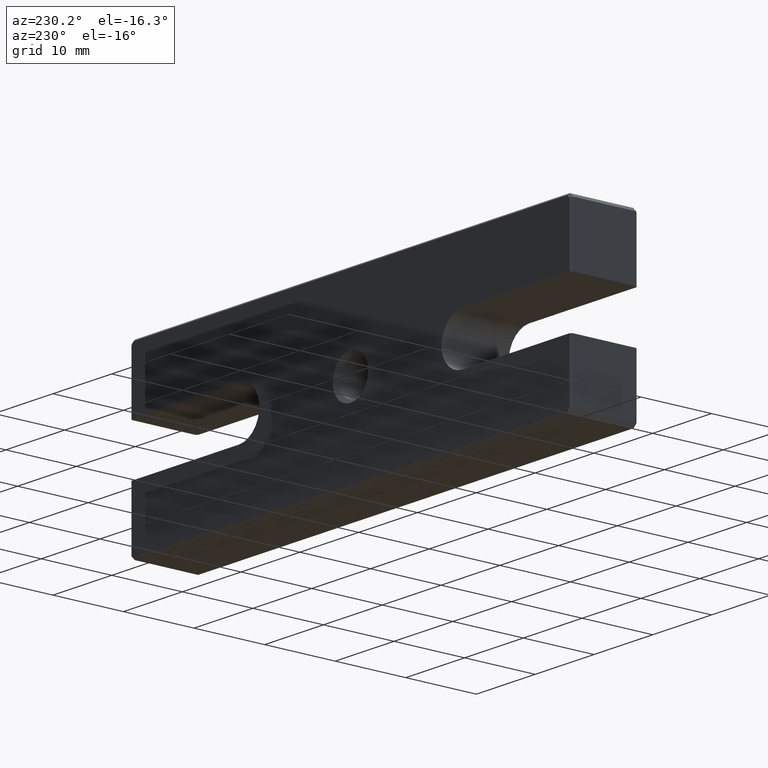
[diagram: clean part render]
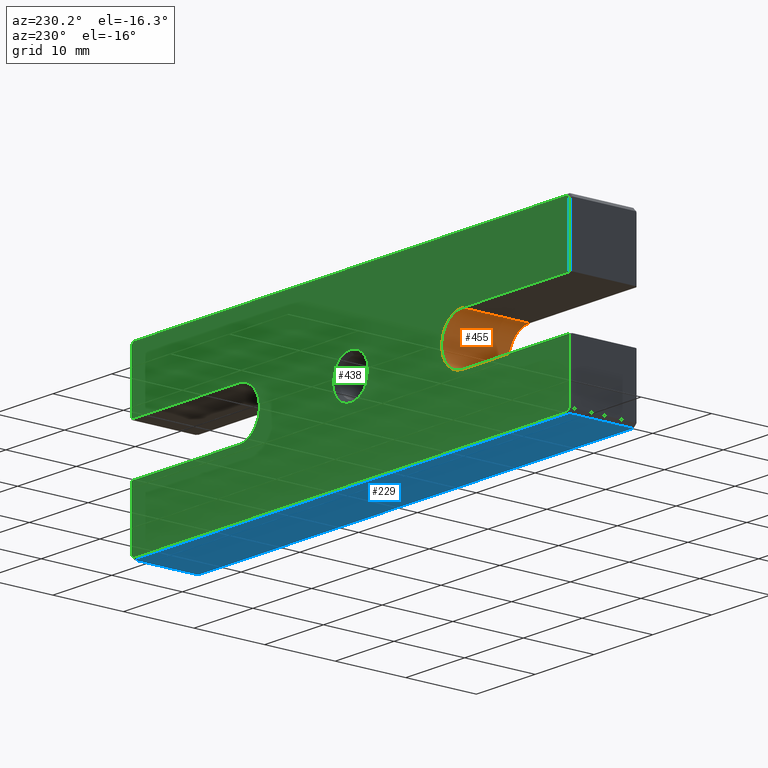
[diagram: same view with three faces highlighted in distinct colors, each labeled with its STEP entity id]
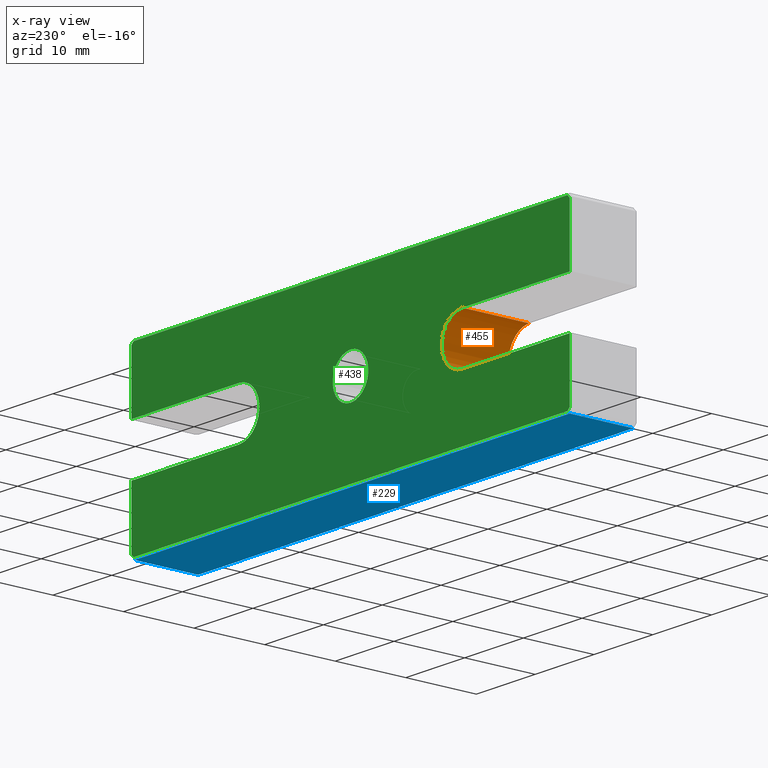
[diagram: x-ray of the same camera — body ghosted, the three highlighted faces saturated]
A machine part, auxiliary view with three faces highlighted in distinct colors.
The next image is the same camera in x-ray (body ghosted, the three faces saturated) — at least one of them is partly hidden behind the body in this view.
Their STEP definitions:

[orange] entity #455 — the highlighted cylindrical surface (edge-blend (fillet) strip) has radius 3.5 mm, axis along (-0, 1, -0).
#22 = VERTEX_POINT ( 'NONE', #220 ) ;
#39 = ORIENTED_EDGE ( 'NONE', *, *, #796, .F. ) ;
#86 = VECTOR ( 'NONE', #672, 1000.000000000000000 ) ;
#145 = CARTESIAN_POINT ( 'NONE',  ( -19.00000000000000355, 0.000000000000000000, -4.336808689942017736E-16 ) ) ;
#163 = CYLINDRICAL_SURFACE ( 'NONE', #1060, 3.499999999999999556 ) ;
#168 = EDGE_CURVE ( 'NONE', #456, #22, #536, .T. ) ;
#218 = CARTESIAN_POINT ( 'NONE',  ( -19.00000000000000355, 0.000000000000000000, -3.500000000000000000 ) ) ;
#220 = CARTESIAN_POINT ( 'NONE',  ( -19.00000000000000355, 9.500000000000000000, 3.499999999999999112 ) ) ;
#296 = LINE ( 'NONE', #218, #86 ) ;
#373 = CARTESIAN_POINT ( 'NONE',  ( -19.00000000000000355, 9.500000000000000000, -4.336808689942017736E-16 ) ) ;
#380 = DIRECTION ( 'NONE',  ( 0.000000000000000000, 1.000000000000000000, 0.000000000000000000 ) ) ;
#400 = VERTEX_POINT ( 'NONE', #740 ) ;
#417 = EDGE_LOOP ( 'NONE', ( #748, #39, #1159, #767 ) ) ;
#455 = ADVANCED_FACE ( 'NONE', ( #893 ), #163, .F. ) ;
#456 = VERTEX_POINT ( 'NONE', #1002 ) ;
#459 = CARTESIAN_POINT ( 'NONE',  ( -19.00000000000000355, 0.000000000000000000, 3.499999999999999112 ) ) ;
#503 = AXIS2_PLACEMENT_3D ( 'NONE', #373, #380, #961 ) ;
#536 = LINE ( 'NONE', #459, #792 ) ;
#577 = VERTEX_POINT ( 'NONE', #1096 ) ;
#602 = DIRECTION ( 'NONE',  ( -0.000000000000000000, 1.000000000000000000, -0.000000000000000000 ) ) ;
#618 = EDGE_CURVE ( 'NONE', #456, #577, #770, .T. ) ;
#672 = DIRECTION ( 'NONE',  ( -0.000000000000000000, 1.000000000000000000, -0.000000000000000000 ) ) ;
#740 = CARTESIAN_POINT ( 'NONE',  ( -19.00000000000000355, 9.500000000000000000, -3.500000000000000000 ) ) ;
#748 = ORIENTED_EDGE ( 'NONE', *, *, #1197, .T. ) ;
#757 = CIRCLE ( 'NONE', #503, 3.499999999999999556 ) ;
#767 = ORIENTED_EDGE ( 'NONE', *, *, #168, .T. ) ;
#770 = CIRCLE ( 'NONE', #1146, 3.499999999999999556 ) ;
#792 = VECTOR ( 'NONE', #827, 1000.000000000000000 ) ;
#796 = EDGE_CURVE ( 'NONE', #577, #400, #296, .T. ) ;
#827 = DIRECTION ( 'NONE',  ( -0.000000000000000000, 1.000000000000000000, -0.000000000000000000 ) ) ;
#893 = FACE_OUTER_BOUND ( 'NONE', #417, .T. ) ;
#929 = DIRECTION ( 'NONE',  ( 0.000000000000000000, 1.000000000000000000, 0.000000000000000000 ) ) ;
#961 = DIRECTION ( 'NONE',  ( 0.000000000000000000, 0.000000000000000000, 1.000000000000000000 ) ) ;
#984 = DIRECTION ( 'NONE',  ( 0.000000000000000000, 0.000000000000000000, 1.000000000000000000 ) ) ;
#1002 = CARTESIAN_POINT ( 'NONE',  ( -19.00000000000000355, 0.000000000000000000, 3.499999999999999112 ) ) ;
#1027 = DIRECTION ( 'NONE',  ( 0.000000000000000000, 0.000000000000000000, 1.000000000000000000 ) ) ;
#1060 = AXIS2_PLACEMENT_3D ( 'NONE', #145, #602, #984 ) ;
#1096 = CARTESIAN_POINT ( 'NONE',  ( -19.00000000000000355, 0.000000000000000000, -3.500000000000000000 ) ) ;
#1146 = AXIS2_PLACEMENT_3D ( 'NONE', #1195, #929, #1027 ) ;
#1159 = ORIENTED_EDGE ( 'NONE', *, *, #618, .F. ) ;
#1195 = CARTESIAN_POINT ( 'NONE',  ( -19.00000000000000355, 0.000000000000000000, -4.336808689942017736E-16 ) ) ;
#1197 = EDGE_CURVE ( 'NONE', #22, #400, #757, .T. ) ;

[blue] entity #229 — the highlighted planar face has unit normal (0, 0, 1).
#75 = PLANE ( 'NONE',  #324 ) ;
#164 = FACE_OUTER_BOUND ( 'NONE', #310, .T. ) ;
#193 = ORIENTED_EDGE ( 'NONE', *, *, #1032, .T. ) ;
#201 = ORIENTED_EDGE ( 'NONE', *, *, #601, .T. ) ;
#209 = EDGE_CURVE ( 'NONE', #816, #215, #807, .T. ) ;
#215 = VERTEX_POINT ( 'NONE', #344 ) ;
#229 = ADVANCED_FACE ( 'NONE', ( #164 ), #75, .F. ) ;
#305 = CARTESIAN_POINT ( 'NONE',  ( -37.50000000000000000, 0.2500000000000071609, -12.50000000000000178 ) ) ;
#310 = EDGE_LOOP ( 'NONE', ( #367, #1041, #201, #193 ) ) ;
#324 = AXIS2_PLACEMENT_3D ( 'NONE', #1202, #1190, #351 ) ;
#344 = CARTESIAN_POINT ( 'NONE',  ( 36.99999999999998579, 0.2500000000000071609, -12.50000000000000178 ) ) ;
#351 = DIRECTION ( 'NONE',  ( 1.000000000000000000, 0.000000000000000000, -0.000000000000000000 ) ) ;
#367 = ORIENTED_EDGE ( 'NONE', *, *, #209, .T. ) ;
#450 = LINE ( 'NONE', #639, #495 ) ;
#457 = CARTESIAN_POINT ( 'NONE',  ( -37.00000000000000000, 0.2500000000000071609, -12.50000000000000178 ) ) ;
#465 = LINE ( 'NONE', #624, #1177 ) ;
#488 = LINE ( 'NONE', #305, #1070 ) ;
#495 = VECTOR ( 'NONE', #633, 1000.000000000000000 ) ;
#497 = CARTESIAN_POINT ( 'NONE',  ( 36.99999999999998579, 9.250000000000000000, -12.50000000000000178 ) ) ;
#535 = VECTOR ( 'NONE', #541, 1000.000000000000000 ) ;
#541 = DIRECTION ( 'NONE',  ( 0.000000000000000000, -1.000000000000000000, 0.000000000000000000 ) ) ;
#574 = VERTEX_POINT ( 'NONE', #720 ) ;
#593 = VERTEX_POINT ( 'NONE', #457 ) ;
#601 = EDGE_CURVE ( 'NONE', #593, #574, #450, .T. ) ;
#624 = CARTESIAN_POINT ( 'NONE',  ( 36.99999999999998579, 9.250000000000000000, -12.50000000000000178 ) ) ;
#633 = DIRECTION ( 'NONE',  ( -0.000000000000000000, 1.000000000000000000, 0.000000000000000000 ) ) ;
#639 = CARTESIAN_POINT ( 'NONE',  ( -37.00000000000000000, 9.500000000000000000, -12.50000000000000178 ) ) ;
#720 = CARTESIAN_POINT ( 'NONE',  ( -37.00000000000000000, 9.250000000000000000, -12.50000000000000178 ) ) ;
#807 = LINE ( 'NONE', #1184, #535 ) ;
#816 = VERTEX_POINT ( 'NONE', #497 ) ;
#829 = DIRECTION ( 'NONE',  ( 1.000000000000000000, 0.000000000000000000, 0.000000000000000000 ) ) ;
#859 = DIRECTION ( 'NONE',  ( -1.000000000000000000, 0.000000000000000000, 0.000000000000000000 ) ) ;
#1032 = EDGE_CURVE ( 'NONE', #574, #816, #465, .T. ) ;
#1041 = ORIENTED_EDGE ( 'NONE', *, *, #1166, .T. ) ;
#1070 = VECTOR ( 'NONE', #859, 1000.000000000000000 ) ;
#1166 = EDGE_CURVE ( 'NONE', #215, #593, #488, .T. ) ;
#1177 = VECTOR ( 'NONE', #829, 1000.000000000000000 ) ;
#1184 = CARTESIAN_POINT ( 'NONE',  ( 36.99999999999998579, 9.500000000000000000, -12.50000000000000178 ) ) ;
#1190 = DIRECTION ( 'NONE',  ( 0.000000000000000000, 0.000000000000000000, 1.000000000000000000 ) ) ;
#1202 = CARTESIAN_POINT ( 'NONE',  ( -37.50000000000000000, 9.500000000000000000, -12.50000000000000178 ) ) ;

[green] entity #438 — the highlighted planar face has unit normal (0, 1, -0).
#9 = ORIENTED_EDGE ( 'NONE', *, *, #903, .F. ) ;
#21 = DIRECTION ( 'NONE',  ( 0.000000000000000000, 0.000000000000000000, 1.000000000000000000 ) ) ;
#22 = VERTEX_POINT ( 'NONE', #220 ) ;
#37 = VECTOR ( 'NONE', #977, 1000.000000000000114 ) ;
#41 = DIRECTION ( 'NONE',  ( -0.000000000000000000, 1.000000000000000000, -0.000000000000000000 ) ) ;
#44 = EDGE_CURVE ( 'NONE', #400, #1026, #586, .T. ) ;
#50 = EDGE_CURVE ( 'NONE', #922, #1126, #63, .T. ) ;
#52 = AXIS2_PLACEMENT_3D ( 'NONE', #1016, #184, #498 ) ;
#54 = CARTESIAN_POINT ( 'NONE',  ( -36.89644660940670917, 9.500000000000000000, 12.24999999999999645 ) ) ;
#55 = DIRECTION ( 'NONE',  ( 0.000000000000000000, 0.000000000000000000, 1.000000000000000000 ) ) ;
#63 = LINE ( 'NONE', #425, #879 ) ;
#67 = LINE ( 'NONE', #994, #1020 ) ;
#73 = CIRCLE ( 'NONE', #52, 3.500000000000000000 ) ;
#102 = CARTESIAN_POINT ( 'NONE',  ( 24.57322330470361749, 9.500000000000000000, 24.57322330470327643 ) ) ;
#103 = VERTEX_POINT ( 'NONE', #153 ) ;
#104 = CARTESIAN_POINT ( 'NONE',  ( -37.24999999999998579, 9.500000000000000000, 3.499999999999999556 ) ) ;
#113 = FACE_BOUND ( 'NONE', #580, .T. ) ;
#116 = CARTESIAN_POINT ( 'NONE',  ( -37.24999999999999289, 9.500000000000000000, -11.89644660940673404 ) ) ;
#125 = DIRECTION ( 'NONE',  ( -0.7071067811865474617, 0.000000000000000000, 0.7071067811865474617 ) ) ;
#127 = CARTESIAN_POINT ( 'NONE',  ( -37.00000000000000000, 9.500000000000000000, -12.25000000000000178 ) ) ;
#138 = EDGE_CURVE ( 'NONE', #217, #392, #512, .T. ) ;
#139 = LINE ( 'NONE', #649, #943 ) ;
#149 = DIRECTION ( 'NONE',  ( 2.775557561562891351E-16, 0.000000000000000000, 1.000000000000000000 ) ) ;
#150 = CARTESIAN_POINT ( 'NONE',  ( -24.57322330470335459, 9.500000000000000000, 24.57322330470335459 ) ) ;
#153 = CARTESIAN_POINT ( 'NONE',  ( 19.00000000000000355, 9.500000000000000000, -3.500000000000000444 ) ) ;
#157 = LINE ( 'NONE', #810, #744 ) ;
#167 = VECTOR ( 'NONE', #366, 999.9999999999998863 ) ;
#173 = ORIENTED_EDGE ( 'NONE', *, *, #925, .T. ) ;
#179 = CARTESIAN_POINT ( 'NONE',  ( 36.89644660940671628, 9.500000000000000000, 12.24999999999999822 ) ) ;
#184 = DIRECTION ( 'NONE',  ( 0.000000000000000000, 1.000000000000000000, 0.000000000000000000 ) ) ;
#185 = ORIENTED_EDGE ( 'NONE', *, *, #1183, .T. ) ;
#187 = VERTEX_POINT ( 'NONE', #636 ) ;
#200 = VECTOR ( 'NONE', #921, 1000.000000000000000 ) ;
#203 = VECTOR ( 'NONE', #320, 1000.000000000000000 ) ;
#208 = EDGE_CURVE ( 'NONE', #841, #1026, #728, .T. ) ;
#217 = VERTEX_POINT ( 'NONE', #1091 ) ;
#220 = CARTESIAN_POINT ( 'NONE',  ( -19.00000000000000355, 9.500000000000000000, 3.499999999999999112 ) ) ;
#241 = DIRECTION ( 'NONE',  ( 1.000000000000000000, -0.000000000000000000, -1.235698774602665323E-17 ) ) ;
#245 = DIRECTION ( 'NONE',  ( 1.000000000000000000, 0.000000000000000000, 0.000000000000000000 ) ) ;
#278 = EDGE_CURVE ( 'NONE', #103, #754, #73, .T. ) ;
#282 = LINE ( 'NONE', #363, #200 ) ;
#299 = PLANE ( 'NONE',  #474 ) ;
#302 = VERTEX_POINT ( 'NONE', #851 ) ;
#320 = DIRECTION ( 'NONE',  ( -1.000000000000000000, 0.000000000000000000, 1.235698774602665323E-17 ) ) ;
#326 = EDGE_CURVE ( 'NONE', #1126, #217, #931, .T. ) ;
#330 = VECTOR ( 'NONE', #1180, 1000.000000000000000 ) ;
#343 = EDGE_CURVE ( 'NONE', #494, #494, #1102, .T. ) ;
#348 = ORIENTED_EDGE ( 'NONE', *, *, #138, .T. ) ;
#361 = VECTOR ( 'NONE', #1152, 1000.000000000000000 ) ;
#363 = CARTESIAN_POINT ( 'NONE',  ( 24.57322330470310234, 9.500000000000000000, -24.57322330470343985 ) ) ;
#366 = DIRECTION ( 'NONE',  ( 0.7071067811865425767, 0.000000000000000000, -0.7071067811865525687 ) ) ;
#373 = CARTESIAN_POINT ( 'NONE',  ( -19.00000000000000355, 9.500000000000000000, -4.336808689942017736E-16 ) ) ;
#380 = DIRECTION ( 'NONE',  ( 0.000000000000000000, 1.000000000000000000, 0.000000000000000000 ) ) ;
#382 = CARTESIAN_POINT ( 'NONE',  ( 19.00000000000000355, 9.500000000000000000, 3.499999999999999556 ) ) ;
#389 = LINE ( 'NONE', #1144, #603 ) ;
#392 = VERTEX_POINT ( 'NONE', #1043 ) ;
#400 = VERTEX_POINT ( 'NONE', #740 ) ;
#407 = CARTESIAN_POINT ( 'NONE',  ( 0.000000000000000000, 9.500000000000001776, 0.000000000000000000 ) ) ;
#416 = EDGE_CURVE ( 'NONE', #520, #103, #139, .T. ) ;
#425 = CARTESIAN_POINT ( 'NONE',  ( 36.99999999999999289, 9.500000000000000000, 12.24999999999999822 ) ) ;
#438 = ADVANCED_FACE ( 'NONE', ( #113, #756 ), #299, .T. ) ;
#439 = DIRECTION ( 'NONE',  ( 2.775557561562891351E-16, 0.000000000000000000, 1.000000000000000000 ) ) ;
#453 = ORIENTED_EDGE ( 'NONE', *, *, #1197, .F. ) ;
#460 = ORIENTED_EDGE ( 'NONE', *, *, #1106, .T. ) ;
#466 = ORIENTED_EDGE ( 'NONE', *, *, #208, .T. ) ;
#474 = AXIS2_PLACEMENT_3D ( 'NONE', #668, #793, #55 ) ;
#494 = VERTEX_POINT ( 'NONE', #753 ) ;
#498 = DIRECTION ( 'NONE',  ( 0.000000000000000000, 0.000000000000000000, 1.000000000000000000 ) ) ;
#499 = CARTESIAN_POINT ( 'NONE',  ( -19.00000000000000355, 9.500000000000000000, -3.500000000000000000 ) ) ;
#503 = AXIS2_PLACEMENT_3D ( 'NONE', #373, #380, #961 ) ;
#505 = EDGE_CURVE ( 'NONE', #1205, #922, #1170, .T. ) ;
#512 = LINE ( 'NONE', #794, #361 ) ;
#517 = VECTOR ( 'NONE', #439, 1000.000000000000000 ) ;
#520 = VERTEX_POINT ( 'NONE', #788 ) ;
#531 = CARTESIAN_POINT ( 'NONE',  ( -37.24999999999998579, 9.500000000000000000, 11.99999999999999822 ) ) ;
#572 = LINE ( 'NONE', #947, #1015 ) ;
#578 = DIRECTION ( 'NONE',  ( 2.775557561562891351E-16, 0.000000000000000000, -1.000000000000000000 ) ) ;
#580 = EDGE_LOOP ( 'NONE', ( #790 ) ) ;
#582 = CARTESIAN_POINT ( 'NONE',  ( -37.24999999999998579, 9.500000000000000000, 11.89644660940672338 ) ) ;
#586 = LINE ( 'NONE', #499, #203 ) ;
#587 = DIRECTION ( 'NONE',  ( -1.000000000000000000, 0.000000000000000000, 0.000000000000000000 ) ) ;
#603 = VECTOR ( 'NONE', #578, 1000.000000000000000 ) ;
#612 = CARTESIAN_POINT ( 'NONE',  ( 19.00000000000000355, 9.500000000000000000, 3.499999999999999556 ) ) ;
#632 = ORIENTED_EDGE ( 'NONE', *, *, #326, .T. ) ;
#636 = CARTESIAN_POINT ( 'NONE',  ( 36.89644660940670917, 9.500000000000000000, -12.25000000000000178 ) ) ;
#642 = ORIENTED_EDGE ( 'NONE', *, *, #50, .T. ) ;
#649 = CARTESIAN_POINT ( 'NONE',  ( 19.00000000000000355, 9.500000000000000000, -3.500000000000000444 ) ) ;
#666 = EDGE_LOOP ( 'NONE', ( #937, #1038, #460, #185, #682, #466, #735, #453, #1061, #173, #804, #642, #632, #348, #9, #737 ) ) ;
#668 = CARTESIAN_POINT ( 'NONE',  ( 0.000000000000000000, 9.500000000000000000, 0.000000000000000000 ) ) ;
#682 = ORIENTED_EDGE ( 'NONE', *, *, #839, .T. ) ;
#728 = LINE ( 'NONE', #531, #517 ) ;
#735 = ORIENTED_EDGE ( 'NONE', *, *, #44, .F. ) ;
#737 = ORIENTED_EDGE ( 'NONE', *, *, #278, .F. ) ;
#740 = CARTESIAN_POINT ( 'NONE',  ( -19.00000000000000355, 9.500000000000000000, -3.500000000000000000 ) ) ;
#744 = VECTOR ( 'NONE', #149, 1000.000000000000000 ) ;
#745 = EDGE_CURVE ( 'NONE', #520, #1044, #389, .T. ) ;
#751 = DIRECTION ( 'NONE',  ( -1.000000000000000000, -0.000000000000000000, -1.469598057557810142E-17 ) ) ;
#753 = CARTESIAN_POINT ( 'NONE',  ( 0.000000000000000000, 9.500000000000001776, 3.024999999999999911 ) ) ;
#754 = VERTEX_POINT ( 'NONE', #382 ) ;
#756 = FACE_OUTER_BOUND ( 'NONE', #666, .T. ) ;
#757 = CIRCLE ( 'NONE', #503, 3.499999999999999556 ) ;
#787 = AXIS2_PLACEMENT_3D ( 'NONE', #407, #41, #21 ) ;
#788 = CARTESIAN_POINT ( 'NONE',  ( 37.24999999999998579, 9.500000000000000000, -3.500000000000000000 ) ) ;
#790 = ORIENTED_EDGE ( 'NONE', *, *, #343, .F. ) ;
#793 = DIRECTION ( 'NONE',  ( 0.000000000000000000, 1.000000000000000000, -0.000000000000000000 ) ) ;
#794 = CARTESIAN_POINT ( 'NONE',  ( 37.24999999999998579, 9.500000000000000000, -11.99999999999999467 ) ) ;
#804 = ORIENTED_EDGE ( 'NONE', *, *, #505, .T. ) ;
#810 = CARTESIAN_POINT ( 'NONE',  ( -37.24999999999998579, 9.500000000000000000, 11.99999999999999822 ) ) ;
#839 = EDGE_CURVE ( 'NONE', #302, #841, #572, .T. ) ;
#841 = VERTEX_POINT ( 'NONE', #116 ) ;
#851 = CARTESIAN_POINT ( 'NONE',  ( -36.89644660940672338, 9.500000000000000000, -12.25000000000000178 ) ) ;
#879 = VECTOR ( 'NONE', #245, 1000.000000000000000 ) ;
#891 = LINE ( 'NONE', #612, #330 ) ;
#903 = EDGE_CURVE ( 'NONE', #754, #392, #891, .T. ) ;
#921 = DIRECTION ( 'NONE',  ( -0.7071067811865524577, 0.000000000000000000, -0.7071067811865426878 ) ) ;
#922 = VERTEX_POINT ( 'NONE', #54 ) ;
#925 = EDGE_CURVE ( 'NONE', #1139, #1205, #157, .T. ) ;
#931 = LINE ( 'NONE', #102, #167 ) ;
#937 = ORIENTED_EDGE ( 'NONE', *, *, #416, .F. ) ;
#943 = VECTOR ( 'NONE', #751, 1000.000000000000000 ) ;
#947 = CARTESIAN_POINT ( 'NONE',  ( -24.57322330470336169, 9.500000000000000000, -24.57322330470336169 ) ) ;
#961 = DIRECTION ( 'NONE',  ( 0.000000000000000000, 0.000000000000000000, 1.000000000000000000 ) ) ;
#962 = EDGE_CURVE ( 'NONE', #1139, #22, #67, .T. ) ;
#977 = DIRECTION ( 'NONE',  ( 0.7071067811865474617, 0.000000000000000000, 0.7071067811865474617 ) ) ;
#994 = CARTESIAN_POINT ( 'NONE',  ( -19.00000000000000355, 9.500000000000000000, 3.499999999999999112 ) ) ;
#1015 = VECTOR ( 'NONE', #125, 1000.000000000000114 ) ;
#1016 = CARTESIAN_POINT ( 'NONE',  ( 19.00000000000000355, 9.500000000000000000, -4.336808689942017736E-16 ) ) ;
#1020 = VECTOR ( 'NONE', #241, 1000.000000000000000 ) ;
#1026 = VERTEX_POINT ( 'NONE', #1199 ) ;
#1035 = VECTOR ( 'NONE', #587, 1000.000000000000000 ) ;
#1038 = ORIENTED_EDGE ( 'NONE', *, *, #745, .T. ) ;
#1043 = CARTESIAN_POINT ( 'NONE',  ( 37.24999999999997868, 9.500000000000000000, 3.499999999999999556 ) ) ;
#1044 = VERTEX_POINT ( 'NONE', #1105 ) ;
#1050 = LINE ( 'NONE', #127, #1035 ) ;
#1061 = ORIENTED_EDGE ( 'NONE', *, *, #962, .F. ) ;
#1091 = CARTESIAN_POINT ( 'NONE',  ( 37.24999999999997868, 9.500000000000000000, 11.89644660940673582 ) ) ;
#1102 = CIRCLE ( 'NONE', #787, 3.024999999999999911 ) ;
#1105 = CARTESIAN_POINT ( 'NONE',  ( 37.24999999999998579, 9.500000000000000000, -11.89644660940673404 ) ) ;
#1106 = EDGE_CURVE ( 'NONE', #1044, #187, #282, .T. ) ;
#1126 = VERTEX_POINT ( 'NONE', #179 ) ;
#1139 = VERTEX_POINT ( 'NONE', #104 ) ;
#1144 = CARTESIAN_POINT ( 'NONE',  ( 37.24999999999998579, 9.500000000000000000, -11.99999999999999467 ) ) ;
#1152 = DIRECTION ( 'NONE',  ( 2.775557561562891351E-16, 0.000000000000000000, -1.000000000000000000 ) ) ;
#1170 = LINE ( 'NONE', #150, #37 ) ;
#1180 = DIRECTION ( 'NONE',  ( 1.000000000000000000, 0.000000000000000000, 1.469598057557810142E-17 ) ) ;
#1183 = EDGE_CURVE ( 'NONE', #187, #302, #1050, .T. ) ;
#1197 = EDGE_CURVE ( 'NONE', #22, #400, #757, .T. ) ;
#1199 = CARTESIAN_POINT ( 'NONE',  ( -37.24999999999999289, 9.500000000000000000, -3.499999999999999556 ) ) ;
#1205 = VERTEX_POINT ( 'NONE', #582 ) ;